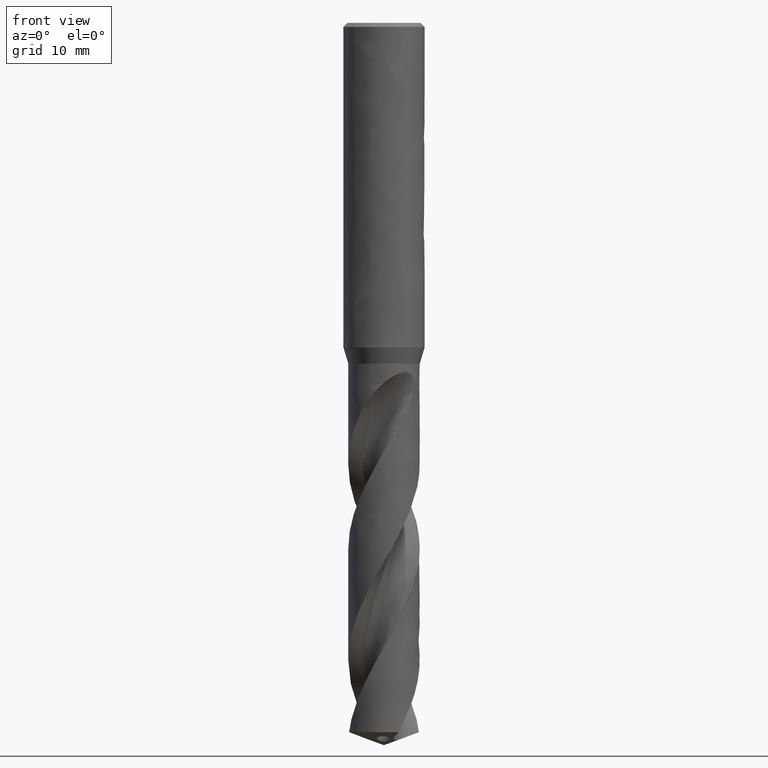
[diagram: clean part render]
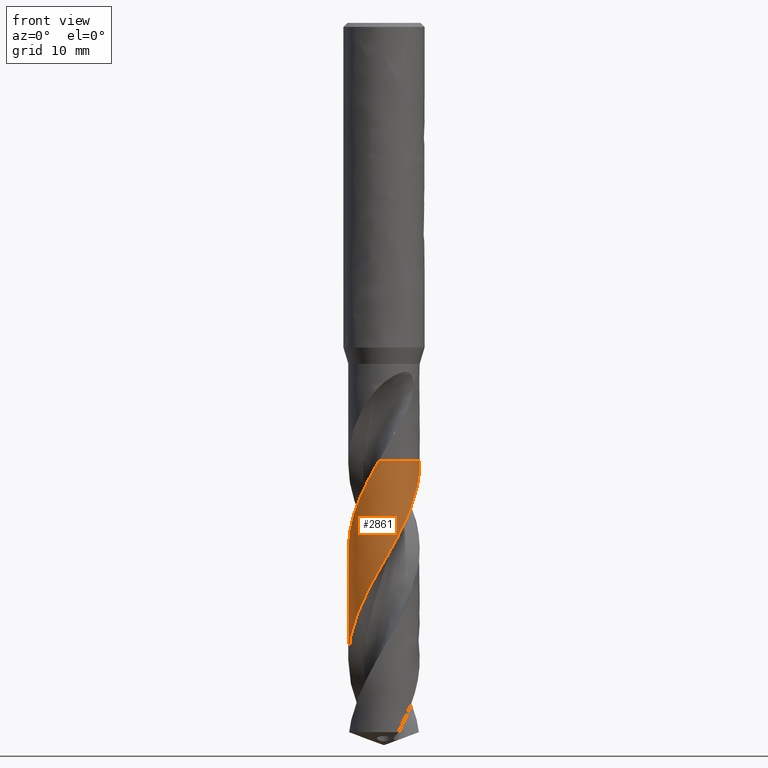
[diagram: same view with one face highlighted and labeled with its STEP entity id]
A machine part, front view. The second image highlights one B-rep face of the part: STEP entity #2861.
In plain terms, the highlighted face is a freeform B-spline surface patch.
Its self-contained STEP definition (entity closure, byte-faithful):
#1647 = VERTEX_POINT('', #1648);
#1648 = CARTESIAN_POINT('', (-0.673859656889685, -4.34809304900625, -54.));
#1655 = EDGE_CURVE('', #1656, #1647, #1658, .T.);
#1656 = VERTEX_POINT('', #1657);
#1657 = CARTESIAN_POINT('', (4.39544496022312, 0.200158940967564, -54.));
#1658 = CIRCLE('', #1659, 4.4);
#1659 = AXIS2_PLACEMENT_3D('', #1660, #1661, #1662);
#1660 = CARTESIAN_POINT('', (2.02467570659351E-31, 3.30654635769785E-15, -54.));
#1661 = DIRECTION('', (3.74939945665464E-33, 6.12323399573677E-17, -1.));
#1662 = DIRECTION('', (-1., 6.12323399573677E-17, 0.));
#2548 = EDGE_CURVE('', #1656, #2549, #2551, .T.);
#2549 = VERTEX_POINT('', #2550);
#2550 = CARTESIAN_POINT('', (-4.4, 5.07525818939278E-15, -78.4852562702385));
#2551 = B_SPLINE_CURVE_WITH_KNOTS('', 3, (#2552, #2553, #2554, #2555, #2556, #2557, #2558, #2559, #2560, #2561, #2562, #2563, #2564, #2565, #2566, #2567, #2568, #2569, #2570, #2571, #2572, #2573, #2574, #2575, #2576, #2577, #2578, #2579, #2580, #2581, #2582, #2583, #2584, #2585, #2586, #2587, #2588, #2589, #2590, #2591, #2592, #2593, #2594, #2595, #2596, #2597, #2598, #2599, #2600, #2601, #2602, #2603, #2604, #2605, #2606, #2607, #2608, #2609, #2610, #2611, #2612, #2613, #2614, #2615, #2616, #2617, #2618, #2619, #2620, #2621, #2622, #2623, #2624, #2625, #2626, #2627, #2628, #2629, #2630, #2631, #2632, #2633, #2634, #2635, #2636, #2637, #2638, #2639, #2640, #2641, #2642, #2643, #2644, #2645, #2646, #2647, #2648, #2649, #2650, #2651, #2652, #2653, #2654, #2655, #2656, #2657, #2658, #2659, #2660, #2661, #2662, #2663, #2664, #2665, #2666, #2667, #2668, #2669, #2670, #2671, #2672, #2673, #2674, #2675, #2676, #2677, #2678, #2679, #2680, #2681, #2682, #2683, #2684, #2685, #2686, #2687, #2688, #2689, #2690), .UNSPECIFIED., .F., .U., (4, 3, 3, 3, 3, 3, 3, 3, 3, 3, 3, 3, 3, 3, 3, 3, 3, 3, 3, 3, 3, 3, 3, 3, 3, 3, 3, 3, 3, 3, 3, 3, 3, 3, 3, 3, 3, 3, 3, 3, 3, 3, 3, 3, 3, 3, 4), (10.0073790586256, 10.3933577763191, 10.4517441922419, 11.1179974041584, 11.4137968443485, 12.0798772197105, 12.745810832509, 13.4116183510075, 14.0773014485945, 14.742859152022, 15.4082960062515, 16.0736134843459, 16.7388128621937, 17.4038950603249, 18.0688610836346, 18.7337115156673, 19.3984461404113, 20.0630647164098, 20.7275669830935, 21.3919519661602, 22.056218113647, 22.7203640735349, 23.3843879889517, 24.0482871969668, 24.2452302283711, 24.3327949506584, 24.99905690637, 25.6651811254195, 26.3311722039421, 26.9970339023532, 27.6627692223521, 28.3283811430788, 28.9938721950286, 29.6592441893769, 30.3244986374528, 30.9896369992282, 31.6546602070986, 32.3195686193465, 32.9843625839126, 33.6490421746895, 34.3136068963511, 34.9780559118205, 35.6423883156799, 36.3066027584173, 36.9706973023928, 37.6346698107596, 38.2224486630686), .UNSPECIFIED.);
#2552 = CARTESIAN_POINT('', (4.39544496022312, 0.200158940967564, -54.));
#2553 = CARTESIAN_POINT('', (4.39836394724422, 0.136058647826295, -54.1115164451839));
#2554 = CARTESIAN_POINT('', (4.39988161864234, 0.0718370312402952, -54.223012571066));
#2555 = CARTESIAN_POINT('', (4.39999333384983, 0.00765911725213169, -54.3345225190004));
#2556 = CARTESIAN_POINT('', (4.40001023284003, -0.00204897857646793, -54.3513904599027));
#2557 = CARTESIAN_POINT('', (4.39999500052205, -0.0117562975812937, -54.3682589106903));
#2558 = CARTESIAN_POINT('', (4.39994765371895, -0.0214626310862499, -54.3851278077689));
#2559 = CARTESIAN_POINT('', (4.39940737462934, -0.132222570215999, -54.5776204737855));
#2560 = CARTESIAN_POINT('', (4.39468474087408, -0.242867691239472, -54.7702126306022));
#2561 = CARTESIAN_POINT('', (4.38580580489014, -0.35313940843943, -54.9627815672697));
#2562 = CARTESIAN_POINT('', (4.38186378367875, -0.402097239536, -55.04827726567));
#2563 = CARTESIAN_POINT('', (4.37710191932594, -0.450989831327045, -55.1337764782737));
#2564 = CARTESIAN_POINT('', (4.37152208689991, -0.499794601557742, -55.2192684841848));
#2565 = CARTESIAN_POINT('', (4.35895743541039, -0.609693050499441, -55.4117791507062));
#2566 = CARTESIAN_POINT('', (4.34223937236061, -0.719164302173216, -55.6043077866797));
#2567 = CARTESIAN_POINT('', (4.32142435428373, -0.827823381044334, -55.7968067110215));
#2568 = CARTESIAN_POINT('', (4.30061392253837, -0.936458518232799, -55.9892632206087));
#2569 = CARTESIAN_POINT('', (4.27570372548591, -1.04431088516095, -56.1817633675104));
#2570 = CARTESIAN_POINT('', (4.24677646470461, -1.15103851318325, -56.3742383066175));
#2571 = CARTESIAN_POINT('', (4.21785468129018, -1.25774593236598, -56.5666768006613));
#2572 = CARTESIAN_POINT('', (4.18490637720759, -1.36337029825929, -56.7591557466472));
#2573 = CARTESIAN_POINT('', (4.14803536163697, -1.46758394601786, -56.9516020006663));
#2574 = CARTESIAN_POINT('', (4.1111712362339, -1.57177811914347, -57.1440122918318));
#2575 = CARTESIAN_POINT('', (4.07037354003154, -1.67459596280931, -57.336459254906));
#2576 = CARTESIAN_POINT('', (4.02577517277812, -1.77570669262785, -57.5288773298245));
#2577 = CARTESIAN_POINT('', (3.98118520648124, -1.87679837630413, -57.7212591591137));
#2578 = CARTESIAN_POINT('', (3.93278046535248, -1.97621908901937, -57.9136798017842));
#2579 = CARTESIAN_POINT('', (3.88071665584756, -2.07365335507826, -58.1060712916712));
#2580 = CARTESIAN_POINT('', (3.8286622998725, -2.17106992942861, -58.2984278479121));
#2581 = CARTESIAN_POINT('', (3.7729317300286, -2.26653535713153, -58.4908225965185));
#2582 = CARTESIAN_POINT('', (3.71370360978196, -2.35974691411864, -58.6831876793145));
#2583 = CARTESIAN_POINT('', (3.65448611477202, -2.45294174940579, -58.8755182527501));
#2584 = CARTESIAN_POINT('', (3.59175190787575, -2.54391564935943, -59.0678870589236));
#2585 = CARTESIAN_POINT('', (3.52570190398499, -2.63238030767528, -59.2602264457705));
#2586 = CARTESIAN_POINT('', (3.45966362460472, -2.72082926266406, -59.4525316905277));
#2587 = CARTESIAN_POINT('', (3.39028769933317, -2.8068006961166, -59.6448750793833));
#2588 = CARTESIAN_POINT('', (3.31779621757447, -2.89002218999241, -59.8371892680765));
#2589 = CARTESIAN_POINT('', (3.2453175057184, -2.97322902379577, -60.0294695792243));
#2590 = CARTESIAN_POINT('', (3.16969869037967, -3.05371632633562, -60.2217878331063));
#2591 = CARTESIAN_POINT('', (3.09118156730216, -3.13122923433774, -60.414076858783));
#2592 = CARTESIAN_POINT('', (3.01267815939066, -3.20872860258753, -60.6063322959149));
#2593 = CARTESIAN_POINT('', (2.93125014316573, -3.2832816154481, -60.7986259161284));
#2594 = CARTESIAN_POINT('', (2.84715689213545, -3.35465313133349, -60.9908901148004));
#2595 = CARTESIAN_POINT('', (2.76307825906449, -3.42601224068324, -61.1831208921193));
#2596 = CARTESIAN_POINT('', (2.67630634346826, -3.49421554522716, -61.375389795796));
#2597 = CARTESIAN_POINT('', (2.58711743846877, -3.55904809739497, -61.5676294643852));
#2598 = CARTESIAN_POINT('', (2.4979440688811, -3.62386935667387, -61.7598356476163));
#2599 = CARTESIAN_POINT('', (2.40632323434837, -3.68534378284555, -61.9520796426164));
#2600 = CARTESIAN_POINT('', (2.31254696417859, -3.74327751288471, -62.1442946171818));
#2601 = CARTESIAN_POINT('', (2.21878706538184, -3.80120112890778, -62.3364760350378));
#2602 = CARTESIAN_POINT('', (2.12283957478059, -3.85560564084338, -62.5286953887302));
#2603 = CARTESIAN_POINT('', (2.02500933629118, -3.90632015942543, -62.720885511595));
#2604 = CARTESIAN_POINT('', (1.92719621825014, -3.95702580288554, -62.9130420008806));
#2605 = CARTESIAN_POINT('', (1.82746740168379, -4.00406018703214, -63.1052365949486));
#2606 = CARTESIAN_POINT('', (1.72613890805785, -4.04727617912206, -63.297401886095));
#2607 = CARTESIAN_POINT('', (1.6248282987535, -4.09048454365655, -63.4895332603663));
#2608 = CARTESIAN_POINT('', (1.52188357725104, -4.12989076942769, -63.6817024703544));
#2609 = CARTESIAN_POINT('', (1.41763149114723, -4.16537164672105, -63.8738427243154));
#2610 = CARTESIAN_POINT('', (1.31339805214928, -4.20084617770807, -64.0659486110059));
#2611 = CARTESIAN_POINT('', (1.20782101402788, -4.23240925572453, -64.2580921661359));
#2612 = CARTESIAN_POINT('', (1.10123524660447, -4.25996255049689, -64.4502067516966));
#2613 = CARTESIAN_POINT('', (0.994668764052798, -4.28751085997179, -64.6422865774086));
#2614 = CARTESIAN_POINT('', (0.887057034757701, -4.31106040234574, -64.8344043428246));
#2615 = CARTESIAN_POINT('', (0.778740009504545, -4.33053853436231, -65.0264928859952));
#2616 = CARTESIAN_POINT('', (0.670442888752621, -4.35001308704773, -65.218546130683));
#2617 = CARTESIAN_POINT('', (0.561403736302391, -4.3654243735397, -65.4106372596651));
#2618 = CARTESIAN_POINT('', (0.451966989974233, -4.37672547002593, -65.6026993775643));
#2619 = CARTESIAN_POINT('', (0.342550796478525, -4.38802444410309, -65.7947254251245));
#2620 = CARTESIAN_POINT('', (0.232698950018855, -4.39521869788199, -65.9867889985231));
#2621 = CARTESIAN_POINT('', (0.122759021441697, -4.39828719192537, -66.1788238120457));
#2622 = CARTESIAN_POINT('', (0.0901457835511225, -4.39919744834902, -66.2357901675612));
#2623 = CARTESIAN_POINT('', (0.0575226169250242, -4.3997449371141, -66.2927577909923));
#2624 = CARTESIAN_POINT('', (0.0248985608237053, -4.3999295518984, -66.3497249253249));
#2625 = CARTESIAN_POINT('', (0.0103932676329447, -4.40001163524099, -66.3750536270401));
#2626 = CARTESIAN_POINT('', (-0.00411234415476226, -4.40002198760782, -66.4003824803231));
#2627 = CARTESIAN_POINT('', (-0.0186174825473603, -4.39996061224911, -66.4257113293313));
#2628 = CARTESIAN_POINT('', (-0.12898409618902, -4.3994936197725, -66.6184333301023));
#2629 = CARTESIAN_POINT('', (-0.239344946456627, -4.39487105543818, -66.8111932321262));
#2630 = CARTESIAN_POINT('', (-0.349348720581791, -4.386109377504, -67.0039240800667));
#2631 = CARTESIAN_POINT('', (-0.459329753572567, -4.37734951087581, -67.196615084664));
#2632 = CARTESIAN_POINT('', (-0.568992606781091, -4.36444917670894, -67.3893440820886));
#2633 = CARTESIAN_POINT('', (-0.677989240531923, -4.34745104512096, -67.5820438057192));
#2634 = CARTESIAN_POINT('', (-0.786964088752633, -4.3304563110077, -67.7747050137967));
#2635 = CARTESIAN_POINT('', (-0.895310416320402, -4.30935960434637, -67.9674044569811));
#2636 = CARTESIAN_POINT('', (-1.00268552986193, -4.28422942058495, -68.1600744818585));
#2637 = CARTESIAN_POINT('', (-1.11003978395862, -4.2591041187898, -68.3527070773016));
#2638 = CARTESIAN_POINT('', (-1.21646012213345, -4.2299382433518, -68.545377636763));
#2639 = CARTESIAN_POINT('', (-1.32160931762428, -4.19682604018427, -68.7380191748048));
#2640 = CARTESIAN_POINT('', (-1.42673855613544, -4.16372012160657, -68.9306241501013));
#2641 = CARTESIAN_POINT('', (-1.5306342298751, -4.12665768498612, -69.1232668305904));
#2642 = CARTESIAN_POINT('', (-1.6329670761461, -4.08575801146163, -69.315880538367));
#2643 = CARTESIAN_POINT('', (-1.73528095422002, -4.04486591901297, -69.5084585436795));
#2644 = CARTESIAN_POINT('', (-1.83606812198771, -4.00012384605142, -69.7010745671239));
#2645 = CARTESIAN_POINT('', (-1.9350106465134, -3.95167480922706, -69.8936612973853));
#2646 = CARTESIAN_POINT('', (-2.03393520402028, -3.90323457028573, -70.0862130557331));
#2647 = CARTESIAN_POINT('', (-2.13104945194916, -3.85107223114149, -70.2788028567463));
#2648 = CARTESIAN_POINT('', (-2.22604731856702, -3.79535417787333, -70.4713635182209));
#2649 = CARTESIAN_POINT('', (-2.32102818988776, -3.73964609266976, -70.6638897302308));
#2650 = CARTESIAN_POINT('', (-2.41392647281214, -3.68036415821981, -70.8564535651906));
#2651 = CARTESIAN_POINT('', (-2.50444868394048, -3.61769771947696, -71.0489886158502));
#2652 = CARTESIAN_POINT('', (-2.59495490318972, -3.55504235154313, -71.2414896527887));
#2653 = CARTESIAN_POINT('', (-2.68311766856243, -3.48898170043004, -71.4340283871652));
#2654 = CARTESIAN_POINT('', (-2.76865930630757, -3.41972596059925, -71.6265381032537));
#2655 = CARTESIAN_POINT('', (-2.85418601711418, -3.3504823058325, -71.8190142265705));
#2656 = CARTESIAN_POINT('', (-2.93712170109448, -3.27802108510074, -72.0115283504206));
#2657 = CARTESIAN_POINT('', (-3.01720624712844, -3.20257185122974, -72.2040132553579));
#2658 = CARTESIAN_POINT('', (-3.0972769283055, -3.12713567971449, -72.3964648358177));
#2659 = CARTESIAN_POINT('', (-3.17452473288405, -3.04868680072074, -72.5889541402659));
#2660 = CARTESIAN_POINT('', (-3.24870695436357, -2.96747419949521, -72.7814146614047));
#2661 = CARTESIAN_POINT('', (-3.32287637058427, -2.88627561710543, -72.9738419602062));
#2662 = CARTESIAN_POINT('', (-3.39400731350316, -2.80228573083255, -73.1663066695805));
#2663 = CARTESIAN_POINT('', (-3.46187622927322, -2.71577115626354, -73.3587426747043));
#2664 = CARTESIAN_POINT('', (-3.52973346307335, -2.62927147305749, -73.5511455566877));
#2665 = CARTESIAN_POINT('', (-3.59435327304565, -2.54021810190825, -73.7435862023276));
#2666 = CARTESIAN_POINT('', (-3.65553371310159, -2.44889225413813, -73.9359977707244));
#2667 = CARTESIAN_POINT('', (-3.71670362743206, -2.35758211842891, -74.1283762358721));
#2668 = CARTESIAN_POINT('', (-3.77445598821764, -2.26396949458814, -74.3207925261588));
#2669 = CARTESIAN_POINT('', (-3.82861067233336, -2.16834967652708, -74.5131798795304));
#2670 = CARTESIAN_POINT('', (-3.88275599750269, -2.07274638336622, -74.7055339847545));
#2671 = CARTESIAN_POINT('', (-3.93332357197226, -1.97510353807866, -74.8979254469295));
#2672 = CARTESIAN_POINT('', (-3.98015537206395, -1.87573004833597, -75.0902883844565));
#2673 = CARTESIAN_POINT('', (-4.02697901835348, -1.77637386033641, -75.2826178300114));
#2674 = CARTESIAN_POINT('', (-4.0700845839448, -1.67525289441353, -75.4749846964213));
#2675 = CARTESIAN_POINT('', (-4.10933796543307, -1.5726860735221, -75.6673227864271));
#2676 = CARTESIAN_POINT('', (-4.14858445790518, -1.47013725323242, -75.8596271208644));
#2677 = CARTESIAN_POINT('', (-4.18399343729522, -1.3661083769396, -76.0519692336297));
#2678 = CARTESIAN_POINT('', (-4.21545554300243, -1.26092607434778, -76.2442823218048));
#2679 = CARTESIAN_POINT('', (-4.2469120621911, -1.15576244828348, -76.4365612622137));
#2680 = CARTESIAN_POINT('', (-4.27443371108859, -1.04941026839573, -76.6288776893709));
#2681 = CARTESIAN_POINT('', (-4.29793567389838, -0.942204300049465, -76.8211655721567));
#2682 = CARTESIAN_POINT('', (-4.32143339431887, -0.835017683680592, -77.0134187446477));
#2683 = CARTESIAN_POINT('', (-4.34092108830311, -0.726940080364714, -77.2057090404946));
#2684 = CARTESIAN_POINT('', (-4.3563390908496, -0.618311996920432, -77.3979708947744));
#2685 = CARTESIAN_POINT('', (-4.3717542601469, -0.509703875233715, -77.5901974185541));
#2686 = CARTESIAN_POINT('', (-4.38310657555178, -0.400508142515939, -77.7824614600354));
#2687 = CARTESIAN_POINT('', (-4.39036217730157, -0.291066920346316, -77.9746966366251));
#2688 = CARTESIAN_POINT('', (-4.39678516803623, -0.194184541706279, -78.1448720129328));
#2689 = CARTESIAN_POINT('', (-4.4, -0.0970827350766724, -78.3150738641195));
#2690 = CARTESIAN_POINT('', (-4.4, 4.97194642784912E-15, -78.4852562702385));
#2861 = ADVANCED_FACE('', (#2862), #2941, .T.);
#2862 = FACE_OUTER_BOUND('', #2863, .T.);
#2863 = EDGE_LOOP('', (#2864, #2865, #2898, #2934, #2940));
#2864 = ORIENTED_EDGE('', *, *, #1655, .T.);
#2865 = ORIENTED_EDGE('', *, *, #2866, .T.);
#2866 = EDGE_CURVE('', #1647, #2867, #2869, .T.);
#2867 = VERTEX_POINT('', #2868);
#2868 = CARTESIAN_POINT('', (-2.91919337809061, -3.29215886939132, -58.3614014996051));
#2869 = B_SPLINE_CURVE_WITH_KNOTS('', 3, (#2870, #2871, #2872, #2873, #2874, #2875, #2876, #2877, #2878, #2879, #2880, #2881, #2882, #2883, #2884, #2885, #2886, #2887, #2888, #2889, #2890, #2891, #2892, #2893, #2894, #2895, #2896, #2897), .UNSPECIFIED., .F., .U., (4, 3, 3, 3, 3, 3, 3, 3, 3, 4), (2.75634163523595, 3.07302371544856, 3.51679317226366, 3.96052220740357, 4.40422634810146, 5.06992087230314, 5.73547998107115, 6.40092123630842, 7.06624031099228, 7.79085763864511), .UNSPECIFIED.);
#2870 = CARTESIAN_POINT('', (-0.673859656889685, -4.34809304900625, -54.));
#2871 = CARTESIAN_POINT('', (-0.726045051047648, -4.34000545028065, -54.0914020534529));
#2872 = CARTESIAN_POINT('', (-0.778136740725077, -4.33096924774067, -54.1827845856287));
#2873 = CARTESIAN_POINT('', (-0.830021981117441, -4.32100260482007, -54.274171936232));
#2874 = CARTESIAN_POINT('', (-0.902729236703808, -4.30703625815412, -54.4022338553333));
#2875 = CARTESIAN_POINT('', (-0.975022109277288, -4.29124648266228, -54.5303457322251));
#2876 = CARTESIAN_POINT('', (-1.04682170290532, -4.27365935965027, -54.6584736777991));
#2877 = CARTESIAN_POINT('', (-1.11861475651621, -4.25607383859838, -54.7865899525694));
#2878 = CARTESIAN_POINT('', (-1.18992818887738, -4.23668841634075, -54.914741437324));
#2879 = CARTESIAN_POINT('', (-1.26070787555751, -4.21552080442111, -55.0428798044025));
#2880 = CARTESIAN_POINT('', (-1.33148359129893, -4.19435438006381, -55.1710109825596));
#2881 = CARTESIAN_POINT('', (-1.40174676515352, -4.1713987217144, -55.2991432246378));
#2882 = CARTESIAN_POINT('', (-1.47139274318889, -4.14668583272124, -55.4272585208979));
#2883 = CARTESIAN_POINT('', (-1.57588342055309, -4.10960879563505, -55.6194714018792));
#2884 = CARTESIAN_POINT('', (-1.67900978387204, -4.0685645487359, -55.8117063214346));
#2885 = CARTESIAN_POINT('', (-1.78039462081563, -4.02370413849858, -56.0039235380972));
#2886 = CARTESIAN_POINT('', (-1.881758834078, -3.97885285375604, -56.1961016539758));
#2887 = CARTESIAN_POINT('', (-1.98142326228042, -3.93017055362219, -56.3883277661841));
#2888 = CARTESIAN_POINT('', (-2.07908188630996, -3.87781104619832, -56.5805256975751));
#2889 = CARTESIAN_POINT('', (-2.17672321748977, -3.82546081030683, -56.7726895956181));
#2890 = CARTESIAN_POINT('', (-2.2723978802681, -3.76941365778843, -56.9648911476485));
#2891 = CARTESIAN_POINT('', (-2.36579892702802, -3.70985113405822, -57.1570626613923));
#2892 = CARTESIAN_POINT('', (-2.4591828245783, -3.65029954650314, -57.3491988908466));
#2893 = CARTESIAN_POINT('', (-2.55032552688269, -3.58721369032614, -57.5413744123121));
#2894 = CARTESIAN_POINT('', (-2.63893404861276, -3.52079921141099, -57.7335225880468));
#2895 = CARTESIAN_POINT('', (-2.7354400299779, -3.44846537331711, -57.9427964581524));
#2896 = CARTESIAN_POINT('', (-2.82897402628886, -3.37215735816534, -58.1521125805579));
#2897 = CARTESIAN_POINT('', (-2.91919337809062, -3.2921588693913, -58.3614014996052));
#2898 = ORIENTED_EDGE('', *, *, #2899, .T.);
#2899 = EDGE_CURVE('', #2867, #2900, #2902, .T.);
#2900 = VERTEX_POINT('', #2901);
#2901 = CARTESIAN_POINT('', (-4.4, 4.23908281398746E-15, -64.8294760732461));
#2902 = B_SPLINE_CURVE_WITH_KNOTS('', 3, (#2903, #2904, #2905, #2906, #2907, #2908, #2909, #2910, #2911, #2912, #2913, #2914, #2915, #2916, #2917, #2918, #2919, #2920, #2921, #2922, #2923, #2924, #2925, #2926, #2927, #2928, #2929, #2930, #2931, #2932, #2933), .UNSPECIFIED., .F., .U., (4, 3, 3, 3, 3, 3, 3, 3, 3, 3, 4), (0., 0.997528904881426, 1.99466357335662, 2.99140690042499, 3.98775864247246, 4.65212269816785, 5.31636708065652, 5.98049012390785, 6.64449014773496, 7.30836472988714, 7.46062397591454), .UNSPECIFIED.);
#2903 = CARTESIAN_POINT('', (-2.91919337809061, -3.29215886939132, -58.3614014996051));
#2904 = CARTESIAN_POINT('', (-3.04339191401776, -3.18203066536752, -58.6495146018646));
#2905 = CARTESIAN_POINT('', (-3.16137506830644, -3.06483947410508, -58.9377598144359));
#2906 = CARTESIAN_POINT('', (-3.27230173034208, -2.94143525946096, -59.2259079235729));
#2907 = CARTESIAN_POINT('', (-3.38318455271716, -2.8180798157686, -59.5139421528269));
#2908 = CARTESIAN_POINT('', (-3.48710368478084, -2.68841943482854, -59.8021090969608));
#2909 = CARTESIAN_POINT('', (-3.58332271687625, -2.55338957206271, -60.090178736167));
#2910 = CARTESIAN_POINT('', (-3.67950398627765, -2.4184127039205, -60.3781353178481));
#2911 = CARTESIAN_POINT('', (-3.76806619888515, -2.27796540471441, -60.6662242691073));
#2912 = CARTESIAN_POINT('', (-3.8483846460098, -2.13305780895784, -60.9542161443297));
#2913 = CARTESIAN_POINT('', (-3.92867153887174, -1.98820714224446, -61.2420948777819));
#2914 = CARTESIAN_POINT('', (-4.00078351026223, -1.8387872872711, -61.5301057634141));
#2915 = CARTESIAN_POINT('', (-4.06421502573047, -1.68586957521238, -61.8180197821261));
#2916 = CARTESIAN_POINT('', (-4.10651095105177, -1.58390454912408, -62.009999900282));
#2917 = CARTESIAN_POINT('', (-4.14496893244812, -1.48034195004617, -62.2020219230826));
#2918 = CARTESIAN_POINT('', (-4.1794698426254, -1.37551148108071, -62.3940178542492));
#2919 = CARTESIAN_POINT('', (-4.21396453808573, -1.27069989543423, -62.5859792008103));
#2920 = CARTESIAN_POINT('', (-4.2445156835826, -1.16458401090182, -62.7779818225395));
#2921 = CARTESIAN_POINT('', (-4.27102886355416, -1.05750292987173, -62.9699589160882));
#2922 = CARTESIAN_POINT('', (-4.29753720029464, -0.950441409619337, -63.1619009406853));
#2923 = CARTESIAN_POINT('', (-4.32001855970625, -0.842376733851845, -63.3538842889927));
#2924 = CARTESIAN_POINT('', (-4.33840448180101, -0.733652882696556, -63.545841794448));
#2925 = CARTESIAN_POINT('', (-4.35678699816309, -0.624949171100804, -63.7377637424836));
#2926 = CARTESIAN_POINT('', (-4.37108195328778, -0.515549202058473, -63.9297274872853));
#2927 = CARTESIAN_POINT('', (-4.38124720919538, -0.405799078261319, -64.1216650444728));
#2928 = CARTESIAN_POINT('', (-4.39141054470136, -0.296069688257629, -64.3135663411666));
#2929 = CARTESIAN_POINT('', (-4.39744918337257, -0.185952753568029, -64.5055090572502));
#2930 = CARTESIAN_POINT('', (-4.39934707825119, -0.0757976588219629, -64.6974262091374));
#2931 = CARTESIAN_POINT('', (-4.39978235932841, -0.0505336524523549, -64.7414422953555));
#2932 = CARTESIAN_POINT('', (-4.4, -0.0252663745268635, -64.785459194078));
#2933 = CARTESIAN_POINT('', (-4.4, 4.64324530261923E-16, -64.8294760732461));
#2934 = ORIENTED_EDGE('', *, *, #2935, .T.);
#2935 = EDGE_CURVE('', #2900, #2549, #2936, .T.);
#2936 = LINE('', #2937, #2938);
#2937 = CARTESIAN_POINT('', (-4.4, 4.23908281398746E-15, -64.8294760732461));
#2938 = VECTOR('', #2939, 13.6557801969924);
#2939 = DIRECTION('', (0., 8.36175375405329E-16, -13.6557801969924));
#2940 = ORIENTED_EDGE('', *, *, #2548, .F.);
#2941 = (
   BOUNDED_SURFACE ()
   B_SPLINE_SURFACE (2, 1, ((#2942, #2943), (#2944, #2945), (#2946, #2947), (#2948, #2949), (#2950, #2951), (#2952, #2953), (#2954, #2955), (#2956, #2957), (#2958, #2959)), .UNSPECIFIED., .T., .F., .U.)
   B_SPLINE_SURFACE_WITH_KNOTS ((3, 2, 2, 2, 3), (2, 2), (0., 6.91150383789755, 13.8230076757951, 20.7345115136926, 27.6460153515902), (0.264325733538243, 1.), .UNSPECIFIED.)
   GEOMETRIC_REPRESENTATION_ITEM ()
   RATIONAL_B_SPLINE_SURFACE (((1., 1.), (0.707106781186548, 0.707106781186548), (1., 1.), (0.707106781186548, 0.707106781186548), (1., 1.), (0.707106781186548, 0.707106781186548), (1., 1.), (0.707106781186548, 0.707106781186548), (1., 1.)))
   REPRESENTATION_ITEM ('')
   SURFACE ()
);
#2942 = CARTESIAN_POINT('', (-4.4, 3.57596865351027E-15, -54.));
#2943 = CARTESIAN_POINT('', (-4.4, 5.62103885589476E-15, -87.3985309692287));
#2944 = CARTESIAN_POINT('', (-4.4, 4.4, -54.));
#2945 = CARTESIAN_POINT('', (-4.4, 4.40000000000001, -87.3985309692287));
#2946 = CARTESIAN_POINT('', (1.97215226305253E-31, 4.4, -54.));
#2947 = CARTESIAN_POINT('', (2.95822839457879E-31, 4.40000000000001, -87.3985309692287));
#2948 = CARTESIAN_POINT('', (4.4, 4.4, -54.));
#2949 = CARTESIAN_POINT('', (4.4, 4.40000000000001, -87.3985309692287));
#2950 = CARTESIAN_POINT('', (4.4, 3.57596865351027E-15, -54.));
#2951 = CARTESIAN_POINT('', (4.4, 5.62103885589476E-15, -87.3985309692287));
#2952 = CARTESIAN_POINT('', (4.4, -4.4, -54.));
#2953 = CARTESIAN_POINT('', (4.4, -4.39999999999999, -87.3985309692287));
#2954 = CARTESIAN_POINT('', (5.38844591624836E-16, -4.4, -54.));
#2955 = CARTESIAN_POINT('', (5.38844591624836E-16, -4.4, -87.3985309692287));
#2956 = CARTESIAN_POINT('', (-4.4, -4.4, -54.));
#2957 = CARTESIAN_POINT('', (-4.4, -4.4, -87.3985309692287));
#2958 = CARTESIAN_POINT('', (-4.4, 3.57596865351027E-15, -54.));
#2959 = CARTESIAN_POINT('', (-4.4, 5.62103885589476E-15, -87.3985309692287));